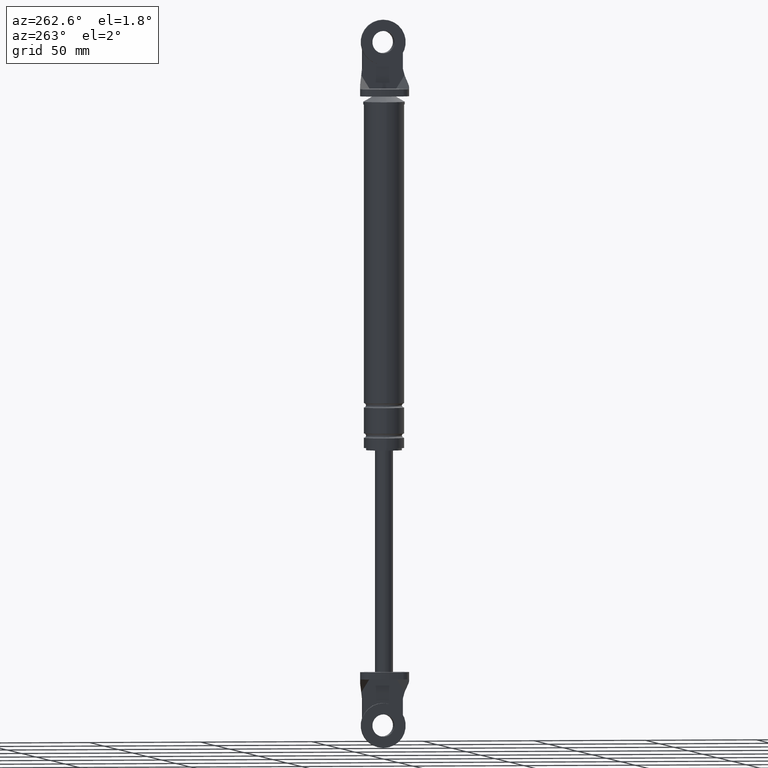
[diagram: clean part render]
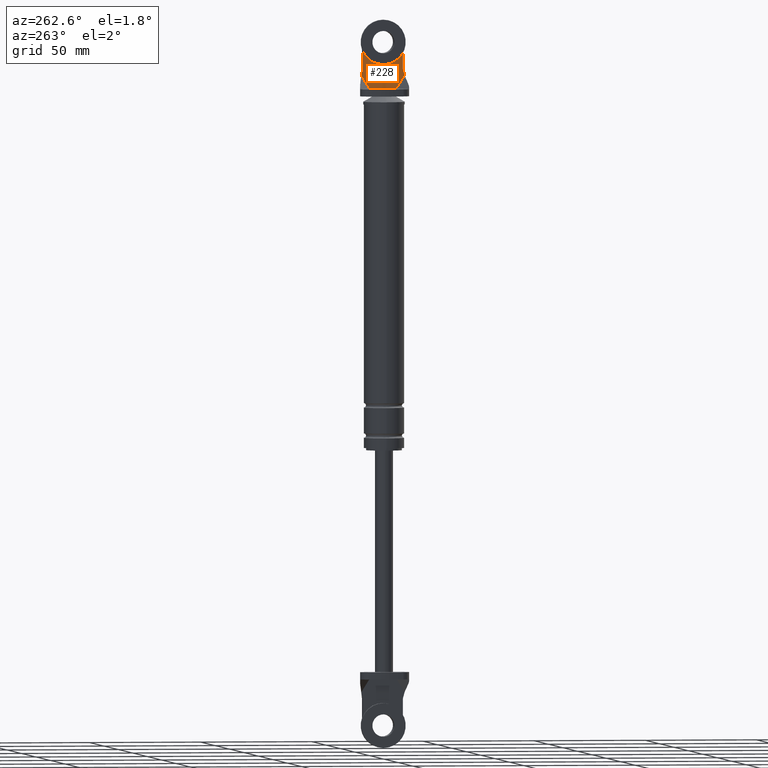
[diagram: same view with one face highlighted and labeled with its STEP entity id]
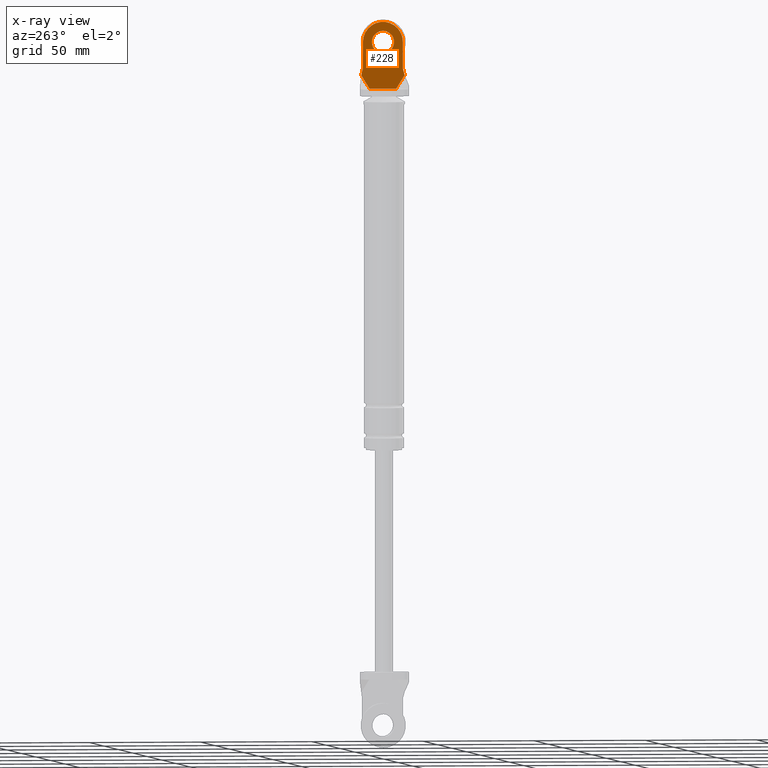
[diagram: x-ray of the same camera — body ghosted, the highlighted face saturated]
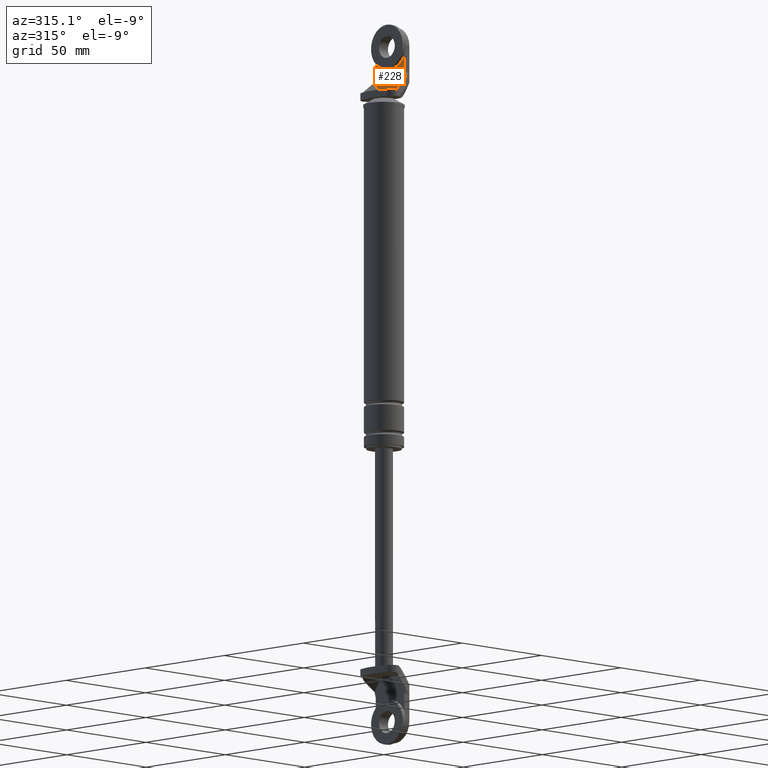
[diagram: same view with one face highlighted and labeled with its STEP entity id]
A machine part, auxiliary view. The second image highlights one B-rep face of the part: STEP entity #228.
The next image is the same camera in x-ray: the body ghosted, the highlighted face saturated — about 0% of this face is hidden behind the body in this view.
A second angle (auxiliary view) of the same face is appended — the face is thin or edge-on in the first view.
In plain terms, the highlighted planar face has unit normal (1, 0, 0).
Its self-contained STEP definition (entity closure, byte-faithful):
#228=ADVANCED_FACE('',(#534,#535),#533,.F.);
#533=PLANE('',#1246);
#534=FACE_OUTER_BOUND('',#1247,.T.);
#535=FACE_BOUND('',#1248,.T.);
#1243=CARTESIAN_POINT('',(3.80000300000E+000,-1.16951792999E+001,8.92199849607E+001));
#1244=DIRECTION('',(1.00000000000E+000,0.00000000000E+000,0.00000000000E+000));
#1245=DIRECTION('',(0.00000000000E+000,1.00000000000E+000,-1.22460635382E-016));
#1246=AXIS2_PLACEMENT_3D('',#1243,#1244,#1245);
#1247=EDGE_LOOP('',(#1872,#1873,#1874,#1875,#1876,#1877,#1878,#1879,#1880,#1881));
#1248=EDGE_LOOP('',(#1882,#1883));
#1872=ORIENTED_EDGE('',*,*,#2238,.F.);
#1873=ORIENTED_EDGE('',*,*,#2228,.T.);
#1874=ORIENTED_EDGE('',*,*,#2239,.T.);
#1875=ORIENTED_EDGE('',*,*,#2233,.F.);
#1876=ORIENTED_EDGE('',*,*,#2240,.T.);
#1877=ORIENTED_EDGE('',*,*,#2236,.F.);
#1878=ORIENTED_EDGE('',*,*,#2197,.T.);
#1879=ORIENTED_EDGE('',*,*,#2241,.T.);
#1880=ORIENTED_EDGE('',*,*,#2242,.F.);
#1881=ORIENTED_EDGE('',*,*,#2243,.T.);
#1882=ORIENTED_EDGE('',*,*,#2244,.F.);
#1883=ORIENTED_EDGE('',*,*,#2245,.F.);
#2197=EDGE_CURVE('',#2621,#2614,#2622,.T.);
#2228=EDGE_CURVE('',#2832,#2833,#2834,.T.);
#2233=EDGE_CURVE('',#2860,#2867,#2868,.T.);
#2236=EDGE_CURVE('',#2621,#2887,#2888,.T.);
#2238=EDGE_CURVE('',#2832,#2900,#2901,.T.);
#2239=EDGE_CURVE('',#2833,#2867,#2907,.T.);
#2240=EDGE_CURVE('',#2860,#2887,#2913,.T.);
#2241=EDGE_CURVE('',#2614,#2919,#2920,.T.);
#2242=EDGE_CURVE('',#2926,#2919,#2927,.T.);
#2243=EDGE_CURVE('',#2926,#2900,#2933,.T.);
#2244=EDGE_CURVE('',#2939,#2940,#2941,.T.);
#2245=EDGE_CURVE('',#2940,#2939,#2947,.T.);
#2614=VERTEX_POINT('',#3840);
#2621=VERTEX_POINT('',#3844);
#2622=LINE('',#3845,#3846);
#2832=VERTEX_POINT('',#3981);
#2833=VERTEX_POINT('',#3982);
#2834=LINE('',#3983,#3984);
#2860=VERTEX_POINT('',#3997);
#2867=VERTEX_POINT('',#4001);
#2868=LINE('',#4002,#4003);
#2887=VERTEX_POINT('',#4012);
#2888=LINE('',#4013,#4014);
#2900=VERTEX_POINT('',#4019);
#2901=LINE('',#4020,#4021);
#2907=LINE('',#4023,#4024);
#2913=LINE('',#4026,#4027);
#2919=VERTEX_POINT('',#4029);
#2920=LINE('',#4030,#4031);
#2926=VERTEX_POINT('',#4033);
#2927=LINE('',#4034,#4035);
#2933=CIRCLE('',#4040,9.00000000000E+000);
#2939=VERTEX_POINT('',#4041);
#2940=VERTEX_POINT('',#4042);
#2941=CIRCLE('',#4046,5.00000000000E+000);
#2947=CIRCLE('',#4050,5.00000000000E+000);
#3840=CARTESIAN_POINT('',(3.80000300000E+000,-9.74598274994E+000,9.82159394757E+001));
#3844=CARTESIAN_POINT('',(3.80000300000E+000,-9.74598274994E+000,9.81935636119E+001));
#3845=CARTESIAN_POINT('',(3.80000300000E+000,-9.74598274994E+000,9.81935636119E+001));
#3846=VECTOR('',#3847,2.23758638136E-002);
#3847=DIRECTION('',(0.00000000000E+000,0.00000000000E+000,1.00000000000E+000));
#3981=CARTESIAN_POINT('',(3.80000300000E+000,9.00000000000E+000,1.00999985000E+002));
#3982=CARTESIAN_POINT('',(3.80000300000E+000,9.74598274994E+000,9.82159394757E+001));
#3983=CARTESIAN_POINT('',(3.80000300000E+000,9.00000000000E+000,1.00999985000E+002));
#3984=VECTOR('',#3985,2.88225601652E+000);
#3985=DIRECTION('',(0.00000000000E+000,2.58819045103E-001,-9.65925826289E-001));
#3997=CARTESIAN_POINT('',(3.80000300000E+000,6.00000000000E+000,9.21999850000E+001));
#4001=CARTESIAN_POINT('',(3.80000300000E+000,9.74598274994E+000,9.81935636119E+001));
#4002=CARTESIAN_POINT('',(3.80000300000E+000,6.00000000000E+000,9.21999850000E+001));
#4003=VECTOR('',#4004,7.06791138451E+000);
#4004=DIRECTION('',(0.00000000000E+000,5.29998544994E-001,8.47998550886E-001));
#4012=CARTESIAN_POINT('',(3.80000300000E+000,-6.00000000000E+000,9.21999850000E+001));
#4013=CARTESIAN_POINT('',(3.80000300000E+000,-9.74598274994E+000,9.81935636119E+001));
#4014=VECTOR('',#4015,7.06791138451E+000);
#4015=DIRECTION('',(0.00000000000E+000,5.29998544994E-001,-8.47998550886E-001));
#4019=CARTESIAN_POINT('',(3.80000300000E+000,9.00000000000E+000,1.12999985000E+002));
#4020=CARTESIAN_POINT('',(3.80000300000E+000,9.00000000000E+000,1.00999985000E+002));
#4021=VECTOR('',#4022,1.20000000000E+001);
#4022=DIRECTION('',(0.00000000000E+000,1.48029736617E-016,1.00000000000E+000));
#4023=CARTESIAN_POINT('',(3.80000300000E+000,9.74598274994E+000,9.82159394757E+001));
#4024=VECTOR('',#4025,2.23758638137E-002);
#4025=DIRECTION('',(0.00000000000E+000,0.00000000000E+000,-1.00000000000E+000));
#4026=CARTESIAN_POINT('',(3.80000300000E+000,6.00000000000E+000,9.21999850000E+001));
#4027=VECTOR('',#4028,1.20000000000E+001);
#4028=DIRECTION('',(0.00000000000E+000,-1.00000000000E+000,0.00000000000E+000));
#4029=CARTESIAN_POINT('',(3.80000300000E+000,-9.00000000000E+000,1.00999985000E+002));
#4030=CARTESIAN_POINT('',(3.80000300000E+000,-9.74598274994E+000,9.82159394757E+001));
#4031=VECTOR('',#4032,2.88225601652E+000);
#4032=DIRECTION('',(0.00000000000E+000,2.58819045103E-001,9.65925826289E-001));
#4033=CARTESIAN_POINT('',(3.80000300000E+000,-9.00000000000E+000,1.12999984215E+002));
#4034=CARTESIAN_POINT('',(3.80000300000E+000,-9.00000000000E+000,1.12999984215E+002));
#4035=VECTOR('',#4036,1.19999992146E+001);
#4036=DIRECTION('',(0.00000000000E+000,-1.48029746305E-016,-1.00000000000E+000));
#4037=CARTESIAN_POINT('',(3.80000300000E+000,1.50626581520E-014,1.12999985000E+002));
#4038=DIRECTION('',(-1.00000000000E+000,0.00000000000E+000,0.00000000000E+000));
#4039=DIRECTION('',(-0.00000000000E+000,-1.22460635382E-016,-1.00000000000E+000));
#4040=AXIS2_PLACEMENT_3D('',#4037,#4038,#4039);
#4041=CARTESIAN_POINT('',(3.80000300000E+000,1.48029736617E-014,1.07999985000E+002));
#4042=CARTESIAN_POINT('',(3.80000300000E+000,1.56749613289E-014,1.17999985000E+002));
#4043=CARTESIAN_POINT('',(3.80000300000E+000,1.50626581520E-014,1.12999985000E+002));
#4044=DIRECTION('',(-1.00000000000E+000,0.00000000000E+000,0.00000000000E+000));
#4045=DIRECTION('',(0.00000000000E+000,-1.47911419729E-031,1.00000000000E+000));
#4046=AXIS2_PLACEMENT_3D('',#4043,#4044,#4045);
#4047=CARTESIAN_POINT('',(3.80000300000E+000,1.50626581520E-014,1.12999985000E+002));
#4048=DIRECTION('',(-1.00000000000E+000,0.00000000000E+000,0.00000000000E+000));
#4049=DIRECTION('',(0.00000000000E+000,-1.47911419729E-031,1.00000000000E+000));
#4050=AXIS2_PLACEMENT_3D('',#4047,#4048,#4049);